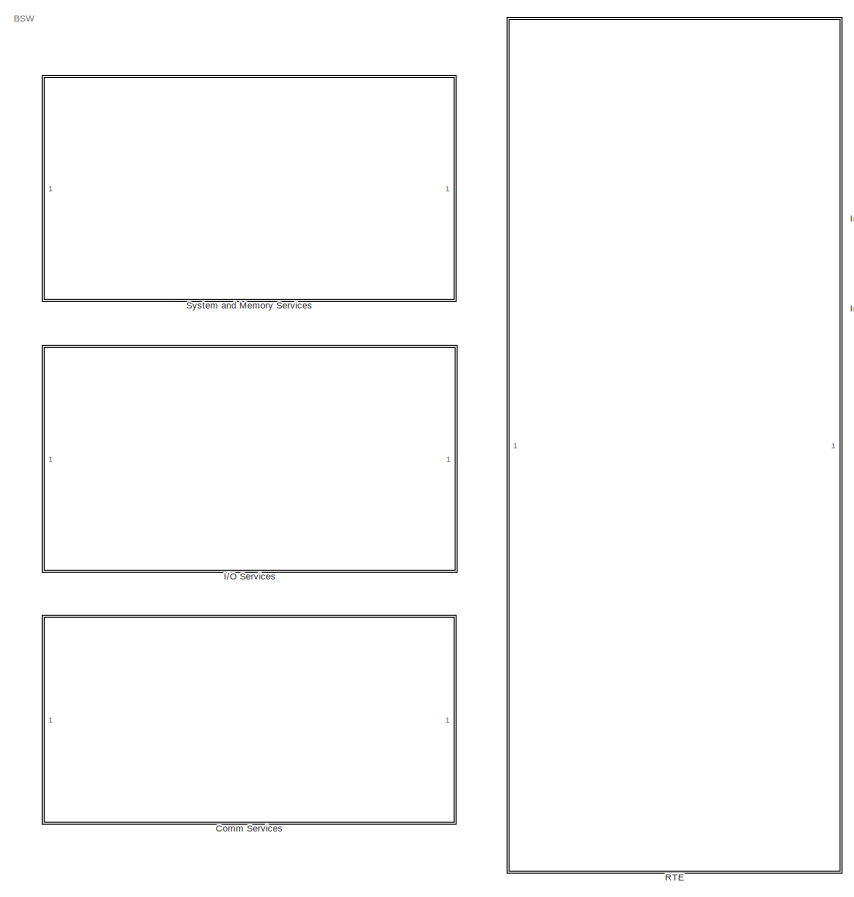
[diagram: root canvas - part 1/2, left side, full height]
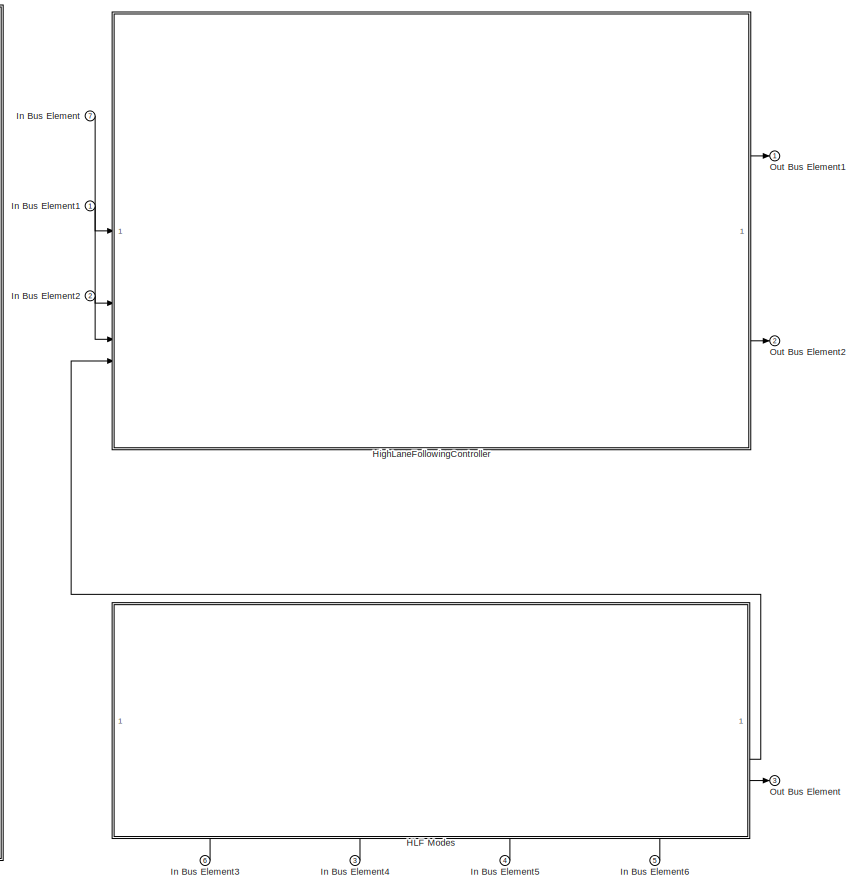
[diagram: root canvas - part 2/2, right side, full height]
MODEL slx_ad65f79fd871
KIND model
CONFIG AbsTol = auto
CONFIG EnableMultiTasking = on
CONFIG FixedStep = auto
CONFIG MaxStep = auto
CONFIG MinStep = auto
CONFIG RelTol = 1e-3
CONFIG SampleTimeConstraint = Unconstrained
CONFIG SolverName = FixedStepDiscrete
CONFIG StartTime = 0.0
CONFIG StopTime = 10.0
BLOCK [SubSystem] Comm Services
  PortSchema = {"entries":[{"content":{"headerSize":26,"margin":15,"minimumSpacing":25,"sides":[{"content":{"connectorIds":[]},"type":"ConnectorPlacement.EquallySpacedRectSide","uuid":"5982ae23-38c5-467f-966f-0de5138e6d7a"},{"content":{"connectorIds":[],"side":"RIGHT"},"type":"ConnectorPlacement.EquallySpacedRectSide","uuid":"84362337-a9b7-4030-aff8-83ed548d578d"},{"content":{"connectorIds":[],"side":"TOP"},"typ...<+277ch>  <repeated x4 — deduplicated; at blocks: Comm Services, I/O Services, RTE, System and Memory Services>
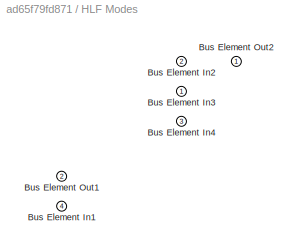
BLOCK [SubSystem] HLF Modes
  PortSchema = {"entries":[{"content":{"headerSize":26,"margin":15,"minimumSpacing":25,"sides":[{"content":{"connectorIds":[]},"type":"ConnectorPlacement.EquallySpacedRectSide","uuid":"b5c560bf-b1de-4f7d-bfcc-f34083c77ac8"},{"content":{"connectorIds":["Out2","Out1"],"side":"RIGHT"},"type":"ConnectorPlacement.EquallySpacedRectSide","uuid":"ae8c8d4f-55e3-4192-b0d3-7950d45edb35"},{"content":{"connectorIds":[],"side...<+601ch>
BLOCK [Inport] HLF Modes/Bus Element In1
  Port = 4
BLOCK [Inport] HLF Modes/Bus Element In2
  Port = 2
BLOCK [Inport] HLF Modes/Bus Element In3
BLOCK [Inport] HLF Modes/Bus Element In4
  Port = 3
BLOCK [Outport] HLF Modes/Bus Element Out1
  Port = 2
BLOCK [Outport] HLF Modes/Bus Element Out2
BLOCK [ModelReference] HighLaneFollowingController
  ModelNameDialog = HighwayLaneFollowingController
  ModelReferenceVersion = 8.0
  PortSchema = {"entries":[{"content":{"headerSize":38,"margin":15,"minimumSpacing":25,"sides":[{"content":{"connectorIds":["In1","In2","In3","In4"]},"type":"ConnectorPlacement.EquallySpacedRectSide","uuid":"5982ae23-38c5-467f-966f-0de5138e6d7a"},{"content":{"connectorIds":["Out2","Out1"],"side":"RIGHT"},"type":"ConnectorPlacement.EquallySpacedRectSide","uuid":"84362337-a9b7-4030-aff8-83ed548d578d"},{"content":{...<+313ch>
BLOCK [SubSystem] I//O Services
BLOCK [Inport] In Bus Element
  Port = 7
BLOCK [Inport] In Bus Element1
BLOCK [Inport] In Bus Element2
  Port = 2
BLOCK [Inport] In Bus Element3
  Port = 6
BLOCK [Inport] In Bus Element4
  Port = 3
BLOCK [Inport] In Bus Element5
  Port = 4
BLOCK [Inport] In Bus Element6
  Port = 5
BLOCK [Outport] Out Bus Element
  Port = 3
BLOCK [Outport] Out Bus Element1
BLOCK [Outport] Out Bus Element2
  Port = 2
BLOCK [SubSystem] RTE
BLOCK [SubSystem] System and Memory Services
ANNOTATION (root): BSW
LINE HLF Modes:1 -> Out Bus Element:1
LINE HLF Modes:2 -> HighLaneFollowingController:4
LINE HighLaneFollowingController:1 -> Out Bus Element2:1
LINE HighLaneFollowingController:2 -> Out Bus Element1:1
LINE In Bus Element1:1 -> HighLaneFollowingController:2
LINE In Bus Element2:1 -> HighLaneFollowingController:3
LINE In Bus Element3:1 -> HLF Modes:2
LINE In Bus Element4:1 -> HLF Modes:1
LINE In Bus Element5:1 -> HLF Modes:3
LINE In Bus Element6:1 -> HLF Modes:4
LINE In Bus Element:1 -> HighLaneFollowingController:1
